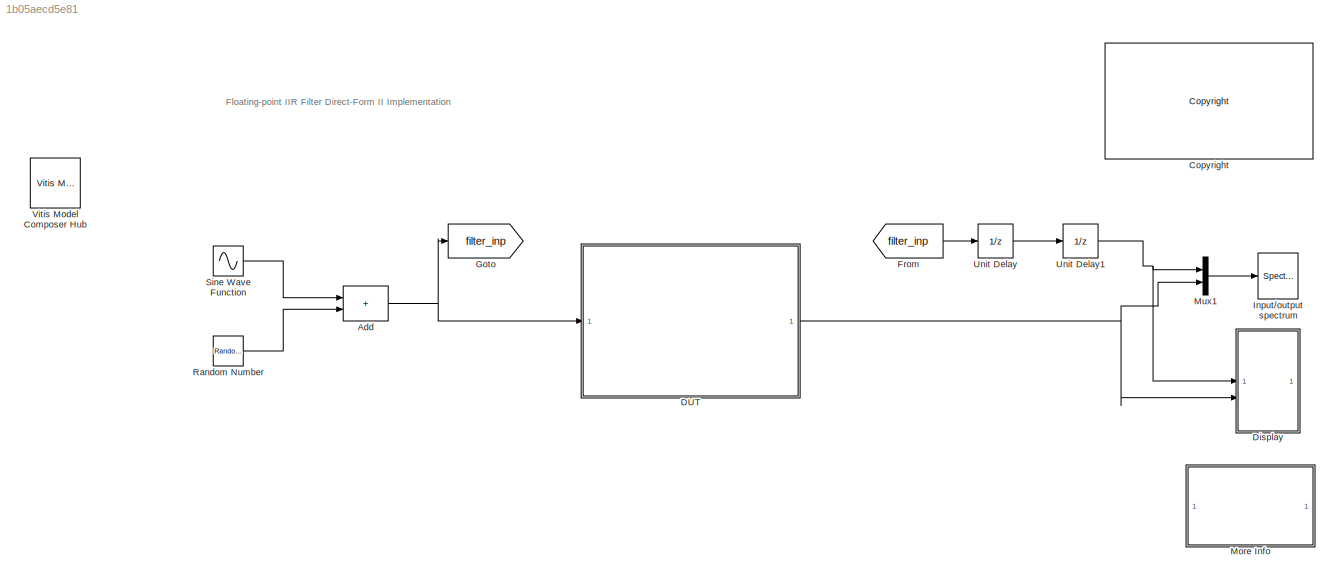
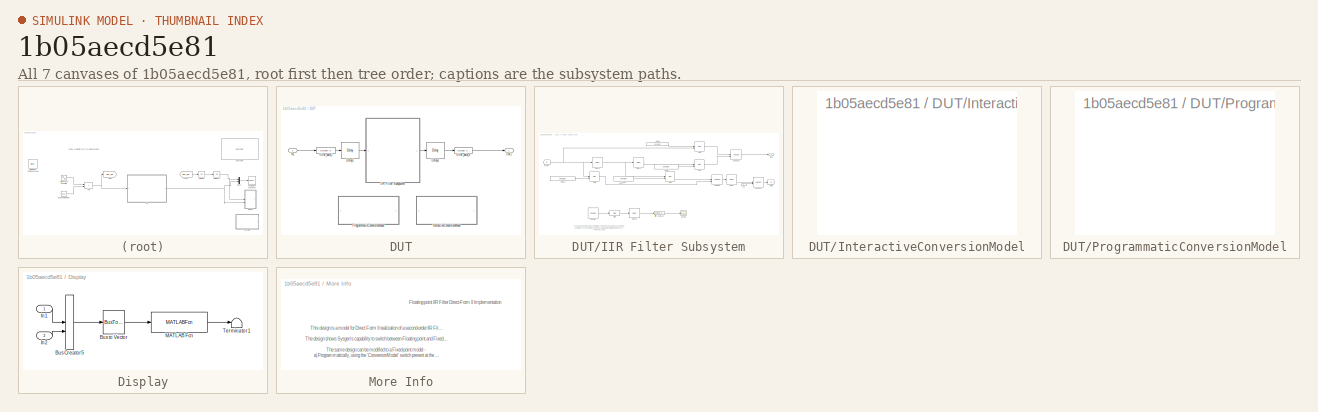
[diagram: thumbnail index - all 7 canvases of the model, root first then tree order]
MODEL slx_1b05aecd5e81
KIND model
CONFIG AbsTol = auto
CONFIG EnableMultiTasking = off
CONFIG FixedStep = auto
CONFIG InitFcn = FloatingPointIIR_DFormII_PreLoadFcn;\nxlIIRFilterResponse;
CONFIG MaxStep = auto
CONFIG MinStep = auto
CONFIG PreLoadFcn = FloatingPointIIR_DFormII_PreLoadFcn;\nxlIIRFilterResponse;\n
CONFIG RelTol = 1e-3
CONFIG SampleTimeConstraint = Unconstrained
CONFIG SolverName = VariableStepAuto
CONFIG StartTime = 0.0
CONFIG StopTime = 500
BLOCK [Sum] Add
  IconShape = rectangular
BLOCK [Reference] <copyright redacted>
  SourceBlock = hdlUtilities/<copyright redacted>
  SourceType = Xilinx <copyright redacted>
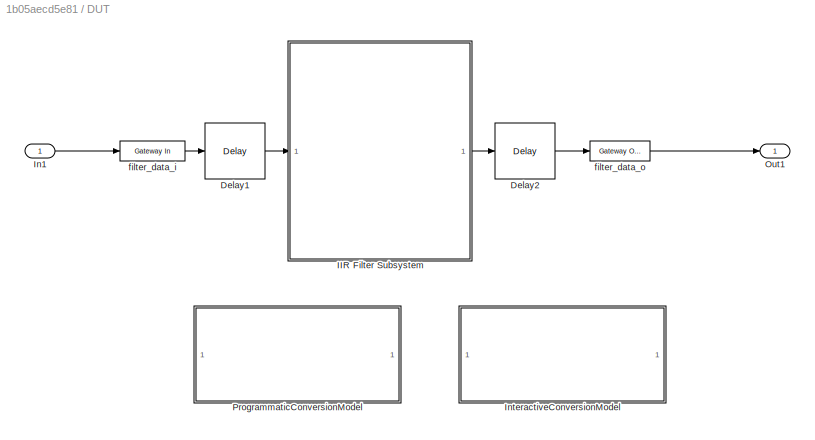
BLOCK [SubSystem] DUT
BLOCK [Reference] DUT/Delay1  REF=hdlBasic/Delay
  SourceBlock = hdlBasic/Delay
  SourceType = Delay Block
BLOCK [Reference] DUT/Delay2  REF=hdlBasic/Delay
  SourceBlock = hdlBasic/Delay
  SourceType = Delay Block
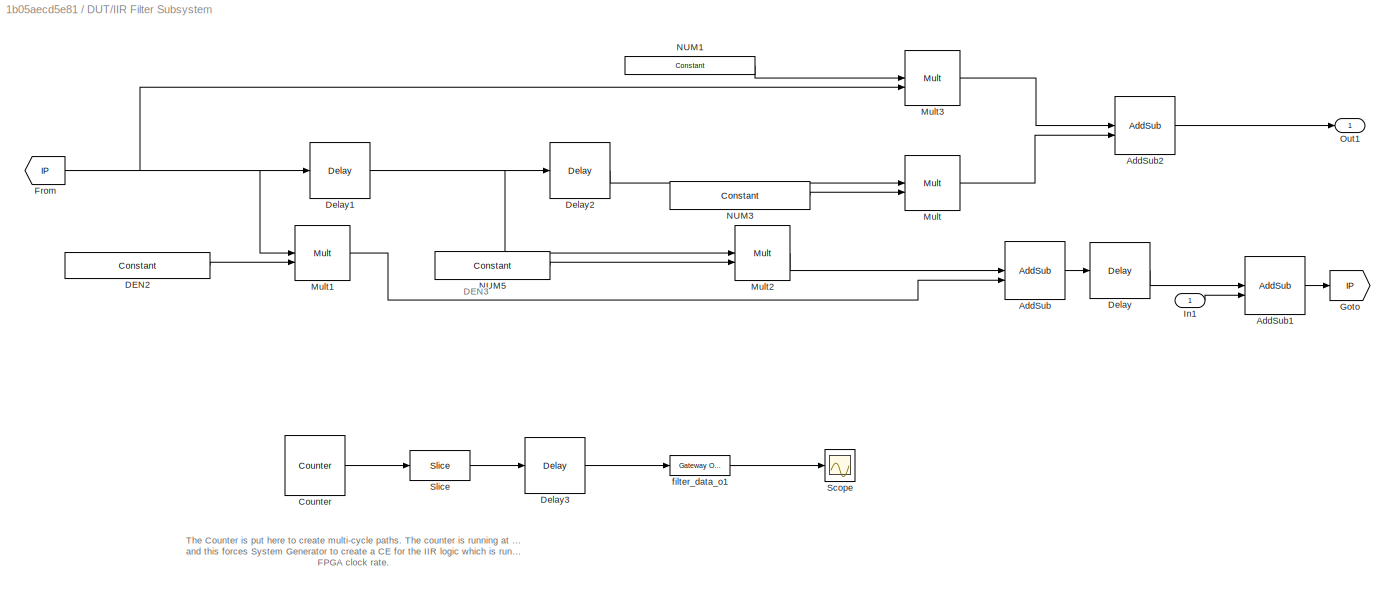
BLOCK [SubSystem] DUT/IIR Filter Subsystem
BLOCK [Reference] DUT/IIR Filter Subsystem/AddSub  REF=hdlBasic/AddSub
  SourceBlock = hdlBasic/AddSub
  SourceType = Adder/Subtracter Block
BLOCK [Reference] DUT/IIR Filter Subsystem/AddSub1  REF=hdlBasic/AddSub
  SourceBlock = hdlBasic/AddSub
  SourceType = Adder/Subtracter Block
BLOCK [Reference] DUT/IIR Filter Subsystem/AddSub2  REF=hdlBasic/AddSub
  SourceBlock = hdlBasic/AddSub
  SourceType = Adder/Subtracter Block
BLOCK [Reference] DUT/IIR Filter Subsystem/Counter  REF=hdlBasic/Counter
  SourceBlock = hdlBasic/Counter
  SourceType = Counter Block
BLOCK [Reference] DUT/IIR Filter Subsystem/DEN2  REF=hdlBasic/Constant
  SourceBlock = hdlBasic/Constant
  SourceType = Constant Block Block
BLOCK [Reference] DUT/IIR Filter Subsystem/Delay  REF=hdlBasic/Delay
  SourceBlock = hdlBasic/Delay
  SourceType = Delay Block
BLOCK [Reference] DUT/IIR Filter Subsystem/Delay1  REF=hdlBasic/Delay
  SourceBlock = hdlBasic/Delay
  SourceType = Delay Block
BLOCK [Reference] DUT/IIR Filter Subsystem/Delay2  REF=hdlBasic/Delay
  SourceBlock = hdlBasic/Delay
  SourceType = Delay Block
BLOCK [Reference] DUT/IIR Filter Subsystem/Delay3  REF=hdlBasic/Delay
  SourceBlock = hdlBasic/Delay
  SourceType = Delay Block
BLOCK [From] DUT/IIR Filter Subsystem/From
  GotoTag = IP
BLOCK [Goto] DUT/IIR Filter Subsystem/Goto
  GotoTag = IP
BLOCK [Inport] DUT/IIR Filter Subsystem/In1
BLOCK [Reference] DUT/IIR Filter Subsystem/Mult  REF=hdlBasic/Mult
  SourceBlock = hdlBasic/Mult
  SourceType = Multiplier Block
BLOCK [Reference] DUT/IIR Filter Subsystem/Mult1  REF=hdlBasic/Mult
  SourceBlock = hdlBasic/Mult
  SourceType = Multiplier Block
BLOCK [Reference] DUT/IIR Filter Subsystem/Mult2  REF=hdlBasic/Mult
  SourceBlock = hdlBasic/Mult
  SourceType = Multiplier Block
BLOCK [Reference] DUT/IIR Filter Subsystem/Mult3  REF=hdlBasic/Mult
  SourceBlock = hdlBasic/Mult
  SourceType = Multiplier Block
BLOCK [Reference] DUT/IIR Filter Subsystem/NUM1  REF=hdlBasic/Constant
  SourceBlock = hdlBasic/Constant
  SourceType = Constant Block Block
BLOCK [Reference] DUT/IIR Filter Subsystem/NUM3  REF=hdlBasic/Constant
  SourceBlock = hdlBasic/Constant
  SourceType = Constant Block Block
BLOCK [Reference] DUT/IIR Filter Subsystem/NUM5  REF=hdlBasic/Constant
  SourceBlock = hdlBasic/Constant
  SourceType = Constant Block Block
BLOCK [Outport] DUT/IIR Filter Subsystem/Out1
  VectorParamsAs1DForOutWhenUnconnected = off
BLOCK [Scope] DUT/IIR Filter Subsystem/Scope
  Floating = off
  NumInputPorts = 1
  ScopeSpecificationString = Simulink.scopes.TimeScopeBlockCfg('CurrentConfiguration', extmgr.ConfigurationSet(extmgr.Configuration('Core','General UI',true),extmgr.Configuration('Sources','WiredSimulink',true,'DataLoggingLimitDataPoints',true,'DataLoggingDecimateData',true,'DataLoggingDecimation','1','DataLoggingSaveFormat','Structure With Time'),extmgr.Configuration('Visuals','Time Domain',true,'SerializedDisplays',{struct(...<+1003ch>
BLOCK [Reference] DUT/IIR Filter Subsystem/Slice  REF=hdlBasic/Slice
  SourceBlock = hdlBasic/Slice
  SourceType = Bit Slice Extractor Block
BLOCK [Reference] DUT/IIR Filter Subsystem/filter_data_o1  REF=hdlBasic/Gateway Out
  SourceBlock = hdlBasic/Gateway Out
  SourceType = Gateway Out Block
BLOCK [Inport] DUT/In1
BLOCK [SubSystem] DUT/InteractiveConversionModel
  OpenFcn = xlConvertModel_I();
BLOCK [Outport] DUT/Out1
BLOCK [SubSystem] DUT/ProgrammaticConversionModel
  OpenFcn = xlConvertModel_P();
BLOCK [Reference] DUT/filter_data_i  REF=hdlBasic/Gateway In
  SourceBlock = hdlBasic/Gateway In
  SourceType = Gateway In Block
BLOCK [Reference] DUT/filter_data_o  REF=hdlBasic/Gateway Out
  SourceBlock = hdlBasic/Gateway Out
  SourceType = Gateway Out Block
BLOCK [SubSystem] Display
BLOCK [BusCreator] Display/Bus Creator5
  DisplayOption = bar
  InheritFromInputs = on
  Inputs = 2
BLOCK [BusToVector] Display/Bus to Vector
BLOCK [Inport] Display/In1
BLOCK [Inport] Display/In2
  Port = 2
BLOCK [MATLABFcn] Display/MATLAB Fcn
  MATLABFcn = xlIIRFilterResponse(u(1),u(2))
BLOCK [Terminator] Display/Terminator1
BLOCK [From] From
  GotoTag = filter_inp
BLOCK [Goto] Goto
  GotoTag = filter_inp
BLOCK [SpectrumAnalyzer] Input//output spectrum
  AllowFFTLengthLessThanSamplesPerUpdate = on
  AveragingMethod = Exponential
  CenterFrequency = 50
  ChannelNames = [""]
  DefaultConfigurationName = spbscopes.SpectrumAnalyzerBlockCfg
  FFTLength = 128
  GraphicalSettings = {"GraphicalSettings":{"Style":{"BackgroundColor":[0.12941176470588237,0.12941176470588237,0.12941176470588237],"AxesColor":[0,0,0],"LabelsColor":[0.6862745098039216,0.6862745098039216,0.6862745098039216],"PreserveColors":false,"Visible":[true],"LineStyle":["-"],"LineColor":[[1,1,0.06666666666666667]],"LineWidth":[1],"Marker":["none"],"FontSize":"small"},"Cursors":{"Enabled":false,"XLocation":[2,8]...<+873ch>
  Method = Welch
  PlotAsTwoSidedSpectrum = off
  RBW = 0.586524024
  RBWSource = Property
  SampleRate = 200
  ScopeFrameLocation = window
  ScopeSpecificationString = spbscopes.SpectrumAnalyzerBlockCfg('CurrentConfiguration', extmgr.ConfigurationSet(extmgr.Configuration('Core','General UI',true,'FigureColor',[0.16        0.16        0.16]),extmgr.Configuration('Visuals','Spectrum',true,'Title','','YLabel','Magnitude','MinYLim','-114.1297','MaxYLim','9.8544','Legend',false,'AxesProperties',struct('XGrid',{'on','on'},'YGrid',{'on','on'},'ZGrid',{'on','on'},'Color...<+2363ch>
  Span = 100
  SpectrumType = Power density
  StartFrequency = 0
  StopFrequency = 100
  WasSavedAsWebScope = on
  WindowPosition = [821.000000,389.000000,437.000000,231.000000,]
  YLabel = Magnitude
  YLimits = [8.0971,24.3803]
BLOCK [SubSystem] More Info
BLOCK [Mux] Mux1
  DisplayOption = bar
  Inputs = 2
BLOCK [RandomNumber] Random Number
  SampleTime = 1/(Fs)
  Variance = 10
BLOCK [Sin] Sine Wave Function
  Frequency = 2*3.14*5000
  SampleTime = 1/(Fs)
BLOCK [UnitDelay] Unit Delay
  HasFrameUpgradeWarning = on
  SampleTime = -1
BLOCK [UnitDelay] Unit Delay1
  HasFrameUpgradeWarning = on
  SampleTime = -1
BLOCK [Reference] Vitis Model Composer Hub  REF=vmcUtilities/Vitis Model Composer Hub
  SourceBlock = vmcUtilities/Vitis Model Composer Hub
  SourceType = VMC Hub
  Tag = genX
  UserDataPersistent = on
ANNOTATION (root): Floating-point IIR Filter Direct-Form II Implementation
ANNOTATION DUT/IIR Filter Subsystem: DEN3
ANNOTATION DUT/IIR Filter Subsystem: The Counter is put here to create multi-cycle paths. The counter is running at the highest rate and this forces System Generator to create a CE for the IIR logic which is running at multiple of the FPGA clock rate.
ANNOTATION More Info: Floating-point IIR Filter Direct-Form II Implementation
ANNOTATION More Info: This design is a model for Direct Form II realization of a second-order IIR Filter (Peaking Filter). The design shows Sysgen's capability to switch between Floating point and Fixed point data. The same design can be modified to a Fixed-point model - a) Programmatically, using the 'ConversionModel' switch present at the top-level or b) Manually, by configuring different blocks in the system (a brie...<+1192ch>
NET Add:1 -> DUT:1, Goto:1
LINE DUT/Delay1:1 -> DUT/IIR Filter Subsystem:1
LINE DUT/Delay2:1 -> DUT/filter_data_o:1
LINE DUT/IIR Filter Subsystem/AddSub1:1 -> DUT/IIR Filter Subsystem/Goto:1
LINE DUT/IIR Filter Subsystem/AddSub2:1 -> DUT/IIR Filter Subsystem/Out1:1
LINE DUT/IIR Filter Subsystem/AddSub:1 -> DUT/IIR Filter Subsystem/Delay:1
LINE DUT/IIR Filter Subsystem/Counter:1 -> DUT/IIR Filter Subsystem/Slice:1
LINE DUT/IIR Filter Subsystem/DEN2:1 -> DUT/IIR Filter Subsystem/Mult1:2
NET DUT/IIR Filter Subsystem/Delay1:1 -> DUT/IIR Filter Subsystem/Delay2:1, DUT/IIR Filter Subsystem/Mult2:1
LINE DUT/IIR Filter Subsystem/Delay2:1 -> DUT/IIR Filter Subsystem/Mult:1
LINE DUT/IIR Filter Subsystem/Delay3:1 -> DUT/IIR Filter Subsystem/filter_data_o1:1
LINE DUT/IIR Filter Subsystem/Delay:1 -> DUT/IIR Filter Subsystem/AddSub1:1
NET DUT/IIR Filter Subsystem/From:1 -> DUT/IIR Filter Subsystem/Delay1:1, DUT/IIR Filter Subsystem/Mult1:1, DUT/IIR Filter Subsystem/Mult3:2
LINE DUT/IIR Filter Subsystem/In1:1 -> DUT/IIR Filter Subsystem/AddSub1:2
LINE DUT/IIR Filter Subsystem/Mult1:1 -> DUT/IIR Filter Subsystem/AddSub:2
LINE DUT/IIR Filter Subsystem/Mult2:1 -> DUT/IIR Filter Subsystem/AddSub:1
LINE DUT/IIR Filter Subsystem/Mult3:1 -> DUT/IIR Filter Subsystem/AddSub2:1
LINE DUT/IIR Filter Subsystem/Mult:1 -> DUT/IIR Filter Subsystem/AddSub2:2
LINE DUT/IIR Filter Subsystem/NUM1:1 -> DUT/IIR Filter Subsystem/Mult3:1
LINE DUT/IIR Filter Subsystem/NUM3:1 -> DUT/IIR Filter Subsystem/Mult:2
LINE DUT/IIR Filter Subsystem/NUM5:1 -> DUT/IIR Filter Subsystem/Mult2:2
LINE DUT/IIR Filter Subsystem/Slice:1 -> DUT/IIR Filter Subsystem/Delay3:1
LINE DUT/IIR Filter Subsystem/filter_data_o1:1 -> DUT/IIR Filter Subsystem/Scope:1
LINE DUT/IIR Filter Subsystem:1 -> DUT/Delay2:1
LINE DUT/In1:1 -> DUT/filter_data_i:1
LINE DUT/filter_data_i:1 -> DUT/Delay1:1
LINE DUT/filter_data_o:1 -> DUT/Out1:1
NET DUT:1 -> Display:2, Mux1:2
LINE Display/Bus Creator5:1 -> Display/Bus to Vector:1
LINE Display/Bus to Vector:1 -> Display/MATLAB Fcn:1
LINE Display/In1:1 -> Display/Bus Creator5:1
LINE Display/In2:1 -> Display/Bus Creator5:2
LINE Display/MATLAB Fcn:1 -> Display/Terminator1:1
LINE From:1 -> Unit Delay:1
LINE Mux1:1 -> Input//output spectrum:1
LINE Random Number:1 -> Add:2
LINE Sine Wave Function:1 -> Add:1
NET Unit Delay1:1 -> Display:1, Mux1:1
LINE Unit Delay:1 -> Unit Delay1:1
note: NET lines group one-source signal fan-out (src -> all destinations, sorted); 1:1 wires keep LINE
